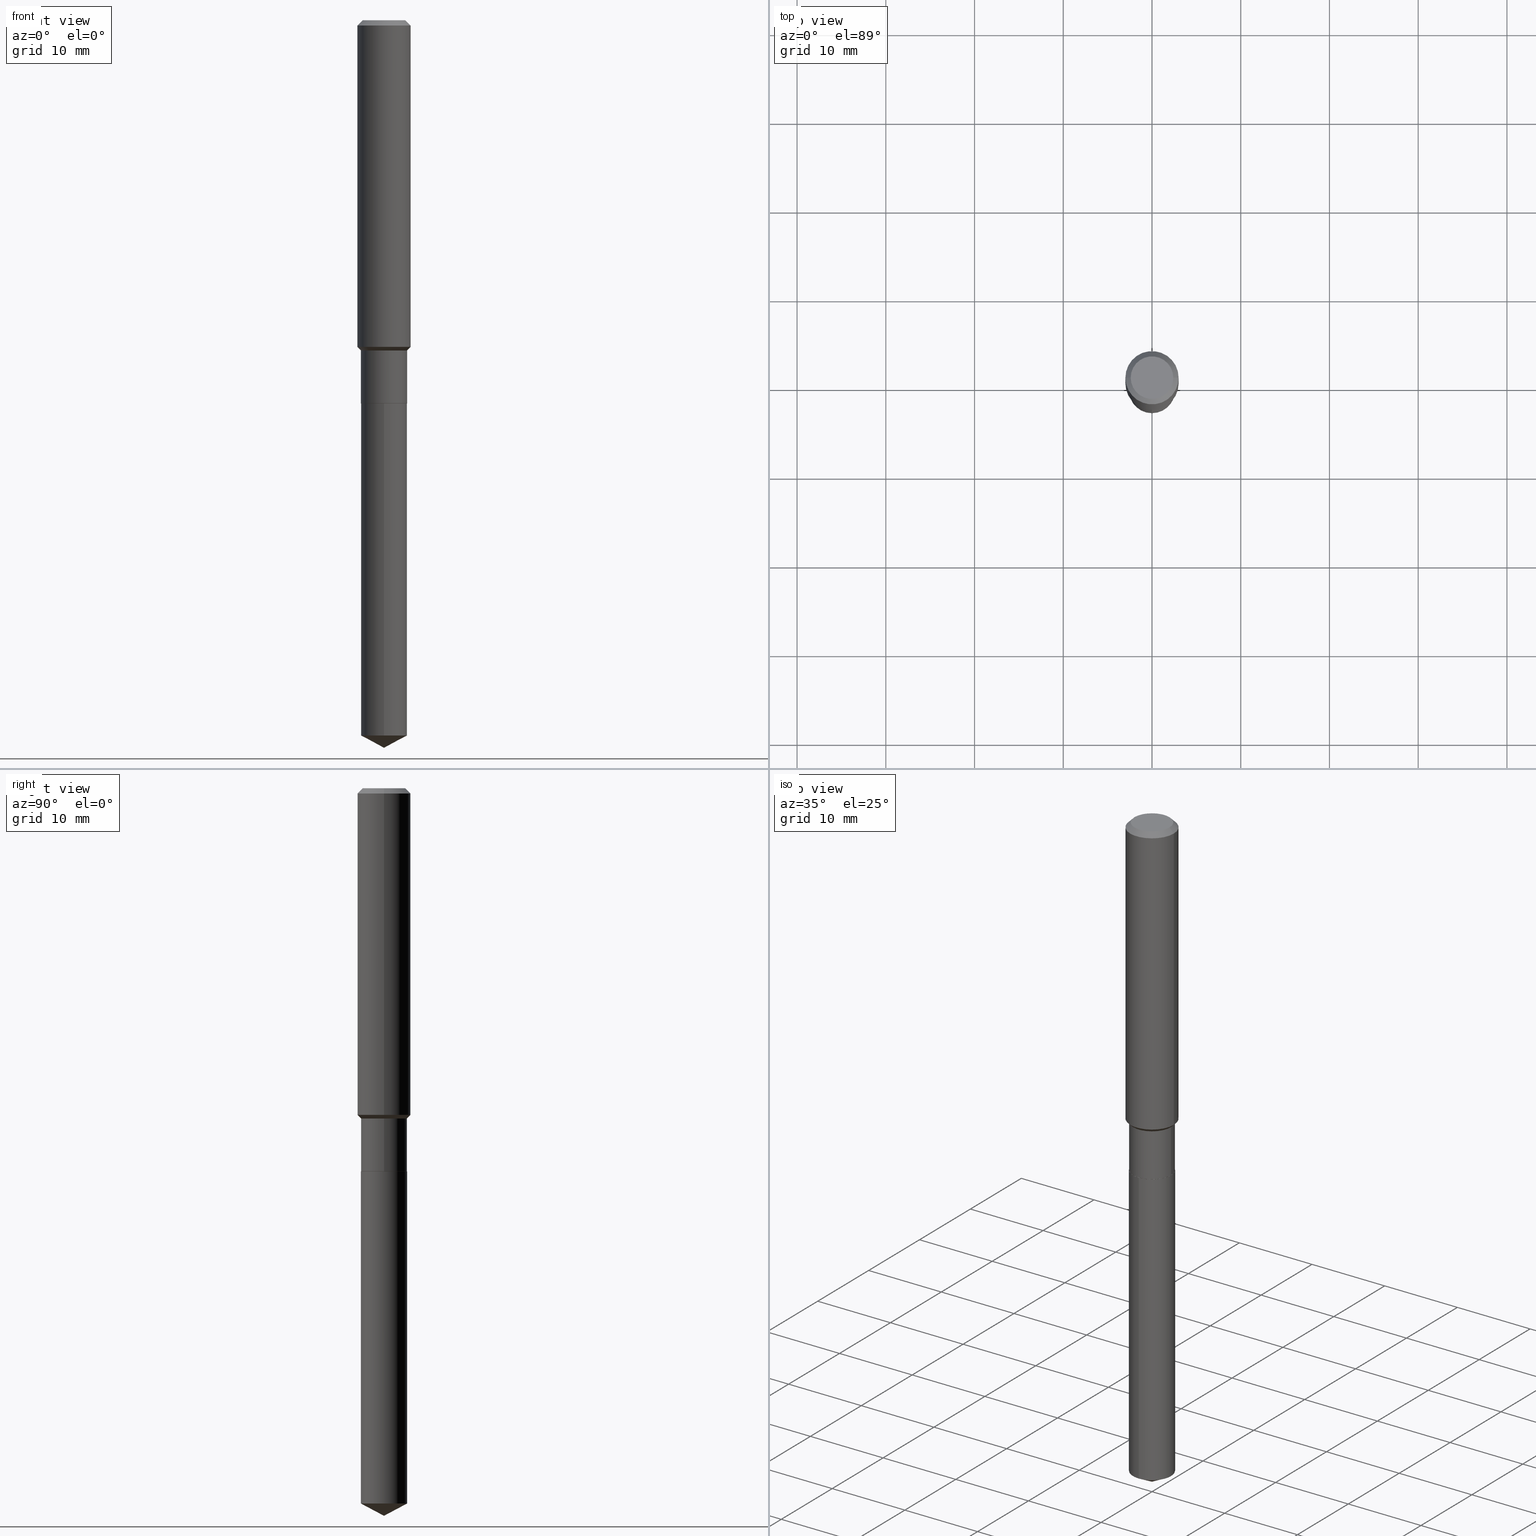
[diagram: canonical four-view strip — front | top / right | iso, engineering-drawing reading convention]
A machine part, canonical four-view strip (front | top / right | iso — engineering-drawing reading convention). The complete STEP part file that produces these views, byte-faithful:
ISO-10303-21;
HEADER;
FILE_DESCRIPTION (( 'STEP AP203' ),
    '1' );
FILE_NAME ('64822.STEP',
    '2024-04-24T19:01:54',
    ( '' ),
    ( '' ),
    'SwSTEP 2.0',
    'SolidWorks 2023',
    '' );
FILE_SCHEMA (( 'CONFIG_CONTROL_DESIGN' ));
ENDSEC;

DATA;
#1 = ADVANCED_FACE ( 'NONE', ( #134 ), #117, .T. ) ;
#2 = DATE_AND_TIME ( #202, #153 ) ;
#3 = DIRECTION ( 'NONE',  ( 1.000000000000000000, -6.982962677686265922E-15, 0.000000000000000000 ) ) ;
#4 = AXIS2_PLACEMENT_3D ( 'NONE', #91, #244, #282 ) ;
#5 = CC_DESIGN_APPROVAL ( #197, ( #76 ) ) ;
#6 = CARTESIAN_POINT ( 'NONE',  ( 4.159008798679061688E-29, -5.937962312970537319E-15, -1.700699999999999878 ) ) ;
#7 = CARTESIAN_POINT ( 'NONE',  ( 4.157786064275969447E-29, -5.936216572301116605E-15, -1.700200000000000156 ) ) ;
#8 = CARTESIAN_POINT ( 'NONE',  ( 4.159008798679061688E-29, -5.937962312970537319E-15, -1.700699999999999878 ) ) ;
#9 = CARTESIAN_POINT ( 'NONE',  ( 0.1180999999999999966, -9.071566814582237199E-16, -0.02362000000000014088 ) ) ;
#10 = EDGE_CURVE ( 'NONE', #281, #252, #254, .T. ) ;
#11 = CARTESIAN_POINT ( 'NONE',  ( 0.1023499999999999827, -7.147062300611892976E-16, 4.990766930027139796E-30 ) ) ;
#12 = VECTOR ( 'NONE', #269, 39.37007874015748143 ) ;
#13 = DIRECTION ( 'NONE',  ( -6.982962677686267499E-15, -1.000000000000000000, 3.541896320645580590E-15 ) ) ;
#14 = CIRCLE ( 'NONE', #187, 0.1018499999999999961 ) ;
#15 = CC_DESIGN_APPROVAL ( #275, ( #359 ) ) ;
#16 = PLANE ( 'NONE',  #442 ) ;
#17 = ADVANCED_FACE ( 'NONE', ( #379 ), #455, .T. ) ;
#18 = CARTESIAN_POINT ( 'NONE',  ( 5.776197320209327532E-31, -8.246878922347559293E-17, -0.02362000000000014088 ) ) ;
#19 = DATE_AND_TIME ( #321, #130 ) ;
#20 = DIRECTION ( 'NONE',  ( 1.000000000000000000, -6.982962677686263555E-15, 0.000000000000000000 ) ) ;
#21 = ADVANCED_FACE ( 'NONE', ( #210 ), #347, .T. ) ;
#22 = DATE_AND_TIME ( #280, #180 ) ;
#23 = ORIENTED_EDGE ( 'NONE', *, *, #61, .F. ) ;
#24 = AXIS2_PLACEMENT_3D ( 'NONE', #25, #388, #20 ) ;
#25 = CARTESIAN_POINT ( 'NONE',  ( 3.544829308005664880E-29, -5.061076774720080972E-15, -1.449549999999999894 ) ) ;
#26 = EDGE_LOOP ( 'NONE', ( #70, #193, #98, #435 ) ) ;
#27 = CARTESIAN_POINT ( 'NONE',  ( 4.159008798679061688E-29, -5.937962312970537319E-15, -1.700699999999999878 ) ) ;
#28 = PERSON_AND_ORGANIZATION_ROLE ( 'creator' ) ;
#29 = PERSON_AND_ORGANIZATION ( #401, #188 ) ;
#30 = CONICAL_SURFACE ( 'NONE', #303, 74.04434902938312746, 1.082104136236484271 ) ;
#31 = DIRECTION ( 'NONE',  ( -2.445468806185136597E-29, 3.491481338843145583E-15, 1.000000000000000000 ) ) ;
#32 = EDGE_LOOP ( 'NONE', ( #302, #72, #35 ) ) ;
#33 = CYLINDRICAL_SURFACE ( 'NONE', #394, 0.1023499999999999965 ) ;
#34 = EDGE_CURVE ( 'NONE', #344, #235, #471, .T. ) ;
#35 = ORIENTED_EDGE ( 'NONE', *, *, #441, .F. ) ;
#36 = CARTESIAN_POINT ( 'NONE',  ( 0.1018499999999999961, -6.649177061692883906E-15, -1.700699999999999878 ) ) ;
#37 = ORIENTED_EDGE ( 'NONE', *, *, #50, .F. ) ;
#38 = CIRCLE ( 'NONE', #410, 0.1023499999999999688 ) ;
#39 = VERTEX_POINT ( 'NONE', #246 ) ;
#40 = ORIENTED_EDGE ( 'NONE', *, *, #10, .T. ) ;
#41 = EDGE_CURVE ( 'NONE', #226, #409, #64, .T. ) ;
#42 = ORIENTED_EDGE ( 'NONE', *, *, #346, .F. ) ;
#43 = DIRECTION ( 'NONE',  ( -2.445468806185136877E-29, 3.491481338843145188E-15, 1.000000000000000000 ) ) ;
#44 = DIRECTION ( 'NONE',  ( -2.445468806185136597E-29, 3.491481338843145583E-15, 1.000000000000000000 ) ) ;
#45 = ADVANCED_FACE ( 'NONE', ( #351 ), #16, .F. ) ;
#46 = DIRECTION ( 'NONE',  ( 1.000000000000000000, -6.982962677686266711E-15, 4.876176775795936353E-29 ) ) ;
#47 = DIRECTION ( 'NONE',  ( -0.7071067811866199593, 7.493145998870616062E-15, 0.7071067811864750752 ) ) ;
#48 = DIRECTION ( 'NONE',  ( 1.000000000000000000, -6.982962677686266711E-15, 4.876176775795936353E-29 ) ) ;
#49 = DIRECTION ( 'NONE',  ( -2.445459379271598071E-29, 3.491494838719879691E-15, 1.000000000000000000 ) ) ;
#50 = EDGE_CURVE ( 'NONE', #344, #430, #53, .T. ) ;
#51 = DIRECTION ( 'NONE',  ( -6.982962677686265922E-15, -1.000000000000000000, 2.669123589315352370E-15 ) ) ;
#52 = CONICAL_SURFACE ( 'NONE', #138, 74.04434902938312746, 1.082104136236484271 ) ;
#53 = LINE ( 'NONE', #338, #85 ) ;
#54 = PERSON_AND_ORGANIZATION_ROLE ( 'creator' ) ;
#55 = APPLICATION_PROTOCOL_DEFINITION ( 'international standard', 'config_control_design', 1994, #79 ) ;
#56 = VECTOR ( 'NONE', #395, 39.37007874015748143 ) ;
#57 = DIRECTION ( 'NONE',  ( -6.982962677686267499E-15, -1.000000000000000000, 3.541896320645580590E-15 ) ) ;
#58 = APPROVAL_STATUS ( 'not_yet_approved' ) ;
#59 = EDGE_LOOP ( 'NONE', ( #205, #182, #116, #330 ) ) ;
#60 = PERSON_AND_ORGANIZATION ( #401, #188 ) ;
#61 = EDGE_CURVE ( 'NONE', #264, #301, #238, .T. ) ;
#62 = DIRECTION ( 'NONE',  ( -2.445459379271598071E-29, 3.491494838719879691E-15, 1.000000000000000000 ) ) ;
#63 = APPROVAL ( #147, 'UNSPECIFIED' ) ;
#64 = CIRCLE ( 'NONE', #212, 0.09447999999999998066 ) ;
#65 = CIRCLE ( 'NONE', #88, 0.1023499999999999688 ) ;
#66 = LINE ( 'NONE', #36, #325 ) ;
#67 = MANIFOLD_SOLID_BREP ( 'Body-Move/Copy2[2]', #126 ) ;
#68 = ORIENTED_EDGE ( 'NONE', *, *, #232, .F. ) ;
#69 = DIRECTION ( 'NONE',  ( 1.000000000000000000, -6.982962677686266711E-15, 4.876176775795936353E-29 ) ) ;
#70 = ORIENTED_EDGE ( 'NONE', *, *, #468, .T. ) ;
#71 = CARTESIAN_POINT ( 'NONE',  ( 7.272404900505040294E-16, 0.1023499999999940568, -1.700700000000000323 ) ) ;
#72 = ORIENTED_EDGE ( 'NONE', *, *, #61, .T. ) ;
#73 = AXIS2_PLACEMENT_3D ( 'NONE', #8, #124, #3 ) ;
#74 = UNCERTAINTY_MEASURE_WITH_UNIT (LENGTH_MEASURE( 1.000000000000000082E-05 ), #306, 'distance_accuracy_value', 'NONE');
#75 = AXIS2_PLACEMENT_3D ( 'NONE', #458, #49, #277 ) ;
#76 = PRODUCT_DEFINITION_FORMATION_WITH_SPECIFIED_SOURCE ( 'ANY', '', #454, .NOT_KNOWN. ) ;
#77 = ORIENTED_EDGE ( 'NONE', *, *, #353, .F. ) ;
#78 = ADVANCED_FACE ( 'NONE', ( #418 ), #381, .T. ) ;
#79 = APPLICATION_CONTEXT ( 'configuration controlled 3d designs of mechanical parts and assemblies' ) ;
#80 = VERTEX_POINT ( 'NONE', #342 ) ;
#81 = EDGE_CURVE ( 'NONE', #39, #235, #305, .T. ) ;
#82 = DESIGN_CONTEXT ( 'detailed design', #87, 'design' ) ;
#83 = DIRECTION ( 'NONE',  ( 1.000000000000000000, -6.982962677686266711E-15, 4.876176775795936353E-29 ) ) ;
#84 = CARTESIAN_POINT ( 'NONE',  ( -0.1180999999999999966, 7.422191030112725094E-16, -0.02362000000000014088 ) ) ;
#85 = VECTOR ( 'NONE', #86, 39.37007874015748143 ) ;
#86 = DIRECTION ( 'NONE',  ( -2.445468806185136877E-29, 3.491481338843145188E-15, 1.000000000000000000 ) ) ;
#87 = APPLICATION_CONTEXT ( 'configuration controlled 3d designs of mechanical parts and assemblies' ) ;
#88 = AXIS2_PLACEMENT_3D ( 'NONE', #223, #155, #110 ) ;
#89 = ORIENTED_EDGE ( 'NONE', *, *, #50, .T. ) ;
#90 = DIRECTION ( 'NONE',  ( -6.982962677686265922E-15, -1.000000000000000000, 5.338247178630704739E-15 ) ) ;
#91 = CARTESIAN_POINT ( 'NONE',  ( 4.716267017698007905E-46, -6.733579360998555036E-32, -1.928573779297252010E-17 ) ) ;
#92 = DIRECTION ( 'NONE',  ( -2.445459379271598071E-29, 3.491494838719879691E-15, 1.000000000000000000 ) ) ;
#93 = DIRECTION ( 'NONE',  ( 1.000000000000000000, -6.982962677686263555E-15, 0.000000000000000000 ) ) ;
#94 = LENGTH_MEASURE_WITH_UNIT ( LENGTH_MEASURE( 0.02539999999999999897 ), #352 );
#95 = VECTOR ( 'NONE', #348, 39.37007874015748143 ) ;
#96 = EDGE_CURVE ( 'NONE', #328, #334, #207, .T. ) ;
#97 = PERSON_AND_ORGANIZATION ( #401, #188 ) ;
#98 = ORIENTED_EDGE ( 'NONE', *, *, #129, .F. ) ;
#99 = FACE_OUTER_BOUND ( 'NONE', #393, .T. ) ;
#100 = CALENDAR_DATE ( 2024, 24, 4 ) ;
#101 = ORIENTED_EDGE ( 'NONE', *, *, #154, .F. ) ;
#102 = AXIS2_PLACEMENT_3D ( 'NONE', #423, #168, #83 ) ;
#103 = CIRCLE ( 'NONE', #214, 0.1023499999999999965 ) ;
#104 = CARTESIAN_POINT ( 'NONE',  ( 5.776197320209327532E-31, -8.246878922347559293E-17, -0.02362000000000014088 ) ) ;
#105 = PERSON_AND_ORGANIZATION_ROLE ( 'design_owner' ) ;
#106 = CC_DESIGN_PERSON_AND_ORGANIZATION_ASSIGNMENT ( #217, #28, ( #76 ) ) ;
#107 = CARTESIAN_POINT ( 'NONE',  ( 2.358133508849003952E-46, -3.366789680499277518E-32, -9.642868896486260050E-18 ) ) ;
#108 = MECHANICAL_CONTEXT ( 'NONE', #79, 'mechanical' ) ;
#109 = ORIENTED_EDGE ( 'NONE', *, *, #216, .T. ) ;
#110 = DIRECTION ( 'NONE',  ( 1.000000000000000000, -6.982962677686262766E-15, 0.000000000000000000 ) ) ;
#111 = ORIENTED_EDGE ( 'NONE', *, *, #428, .T. ) ;
#112 = DIRECTION ( 'NONE',  ( 1.000000000000000000, -6.982962677686266711E-15, 0.000000000000000000 ) ) ;
#113 = ORIENTED_EDGE ( 'NONE', *, *, #477, .F. ) ;
#114 = CARTESIAN_POINT ( 'NONE',  ( 0.000000000000000000, 0.000000000000000000, 0.000000000000000000 ) ) ;
#115 = EDGE_LOOP ( 'NONE', ( #475, #249, #483, #113 ) ) ;
#116 = ORIENTED_EDGE ( 'NONE', *, *, #10, .F. ) ;
#117 = CONICAL_SURFACE ( 'NONE', #73, 0.1018499999999999961, 0.7853981633975507526 ) ;
#118 = CONICAL_SURFACE ( 'NONE', #222, 0.1180999999999999966, 0.7853981633974460586 ) ;
#119 = ADVANCED_BREP_SHAPE_REPRESENTATION ( '64822', ( #221, #67, #357 ), #233 ) ;
#120 = ORIENTED_EDGE ( 'NONE', *, *, #398, .F. ) ;
#121 = CC_DESIGN_PERSON_AND_ORGANIZATION_ASSIGNMENT ( #400, #54, ( #359 ) ) ;
#122 = DIRECTION ( 'NONE',  ( -2.445468806185136597E-29, 3.491481338843145583E-15, 1.000000000000000000 ) ) ;
#123 = DIRECTION ( 'NONE',  ( -2.445459379271598071E-29, 3.491494838719879691E-15, 1.000000000000000000 ) ) ;
#124 = DIRECTION ( 'NONE',  ( -2.445468806185136597E-29, 3.491481338843145583E-15, 1.000000000000000000 ) ) ;
#125 =( NAMED_UNIT ( * ) SI_UNIT ( $, .STERADIAN. ) SOLID_ANGLE_UNIT ( ) );
#126 = CLOSED_SHELL ( 'NONE', ( #414, #432, #17, #297, #78, #21, #375, #343, #283, #219, #45, #1 ) ) ;
#127 = CARTESIAN_POINT ( 'NONE',  ( 4.159008798679061688E-29, -5.937962312970537319E-15, -1.700699999999999878 ) ) ;
#128 = CONICAL_SURFACE ( 'NONE', #444, 0.1018499999999999961, 0.7853981633975507526 ) ;
#129 = EDGE_CURVE ( 'NONE', #328, #408, #484, .T. ) ;
#130 = LOCAL_TIME ( 15, 1, 54.00000000000000000, #213 ) ;
#131 = PLANE ( 'NONE',  #195 ) ;
#132 = CARTESIAN_POINT ( 'NONE',  ( 7.894708859975812714E-29, -1.127154686935866524E-14, -3.228299999999999947 ) ) ;
#133 = CARTESIAN_POINT ( 'NONE',  ( 4.159008798679061688E-29, -5.937962312970537319E-15, -1.700699999999999878 ) ) ;
#134 = FACE_OUTER_BOUND ( 'NONE', #262, .T. ) ;
#135 = DIRECTION ( 'NONE',  ( 1.000000000000000000, -6.982962677686270655E-15, 0.000000000000000000 ) ) ;
#136 = DIRECTION ( 'NONE',  ( -2.445468806185136597E-29, 3.491481338843145583E-15, 1.000000000000000000 ) ) ;
#137 = SECURITY_CLASSIFICATION_LEVEL ( 'unclassified' ) ;
#138 = AXIS2_PLACEMENT_3D ( 'NONE', #142, #285, #57 ) ;
#139 = CARTESIAN_POINT ( 'NONE',  ( 3.583345441703080840E-29, -5.116067605806861096E-15, -1.465300000000000047 ) ) ;
#140 = APPROVAL_DATE_TIME ( #22, #197 ) ;
#141 = APPROVAL_ROLE ( '' ) ;
#142 = CARTESIAN_POINT ( 'NONE',  ( -8.838323577132508923E-28, 1.261888568926560873E-13, 36.14177874015747705 ) ) ;
#143 = EDGE_CURVE ( 'NONE', #264, #450, #161, .T. ) ;
#144 = AXIS2_PLACEMENT_3D ( 'NONE', #225, #366, #192 ) ;
#145 = CC_DESIGN_DATE_AND_TIME_ASSIGNMENT ( #186, #326, ( #170 ) ) ;
#146 = CYLINDRICAL_SURFACE ( 'NONE', #230, 0.1023499999999999965 ) ;
#147 = APPROVAL_STATUS ( 'not_yet_approved' ) ;
#148 = CARTESIAN_POINT ( 'NONE',  ( -0.1180999999999999966, -1.732621811039098637E-15, -0.02362000000000014088 ) ) ;
#149 = ORIENTED_EDGE ( 'NONE', *, *, #216, .F. ) ;
#150 = CARTESIAN_POINT ( 'NONE',  ( 0.1023499999999999688, -5.830773835868049900E-15, -1.465300000000000047 ) ) ;
#151 = EDGE_LOOP ( 'NONE', ( #411, #406, #198, #101 ) ) ;
#152 = VECTOR ( 'NONE', #311, 39.37007874015748143 ) ;
#153 = LOCAL_TIME ( 15, 1, 54.00000000000000000, #317 ) ;
#154 = EDGE_CURVE ( 'NONE', #334, #344, #273, .T. ) ;
#155 = DIRECTION ( 'NONE',  ( -2.445468806185136597E-29, 3.491481338843145583E-15, 1.000000000000000000 ) ) ;
#156 = ORIENTED_EDGE ( 'NONE', *, *, #194, .F. ) ;
#157 = ORIENTED_EDGE ( 'NONE', *, *, #335, .T. ) ;
#158 = ORIENTED_EDGE ( 'NONE', *, *, #438, .F. ) ;
#159 = DIRECTION ( 'NONE',  ( -6.165590087286825774E-15, -0.8829475928589252121, 0.4694715627858939699 ) ) ;
#160 = CARTESIAN_POINT ( 'NONE',  ( 4.159008798679061688E-29, -5.937962312970537319E-15, -1.700699999999999878 ) ) ;
#161 = LINE ( 'NONE', #132, #229 ) ;
#162 = CARTESIAN_POINT ( 'NONE',  ( 0.09447999999999998066, -7.704367267948738690E-16, -1.928573779296752193E-17 ) ) ;
#163 = EDGE_CURVE ( 'NONE', #409, #226, #284, .T. ) ;
#164 = CARTESIAN_POINT ( 'NONE',  ( 4.716267017698007905E-46, -6.733579360998555036E-32, -1.928573779297252010E-17 ) ) ;
#165 = LINE ( 'NONE', #419, #286 ) ;
#166 = AXIS2_PLACEMENT_3D ( 'NONE', #7, #464, #412 ) ;
#167 = AXIS2_PLACEMENT_3D ( 'NONE', #271, #276, #93 ) ;
#168 = DIRECTION ( 'NONE',  ( -2.445468806185136597E-29, 3.491481338843145583E-15, 1.000000000000000000 ) ) ;
#169 = VECTOR ( 'NONE', #239, 39.37007874015748143 ) ;
#170 = SECURITY_CLASSIFICATION ( '', '', #137 ) ;
#171 = CARTESIAN_POINT ( 'NONE',  ( -0.1181000000000000799, 8.391509709326788873E-16, -5.809262341591047988E-30 ) ) ;
#172 = DIRECTION ( 'NONE',  ( 1.000000000000000000, -6.982962677686265922E-15, 4.876176775795935793E-29 ) ) ;
#173 = FACE_OUTER_BOUND ( 'NONE', #365, .T. ) ;
#174 = COORDINATED_UNIVERSAL_TIME_OFFSET ( 5, 0, .BEHIND. ) ;
#175 = FACE_OUTER_BOUND ( 'NONE', #59, .T. ) ;
#176 = AXIS2_PLACEMENT_3D ( 'NONE', #460, #122, #46 ) ;
#177 = PERSON_AND_ORGANIZATION ( #401, #188 ) ;
#178 = CONICAL_SURFACE ( 'NONE', #201, 0.1023499999999999688, 0.7853981633974472798 ) ;
#179 = EDGE_LOOP ( 'NONE', ( #336, #367 ) ) ;
#180 = LOCAL_TIME ( 15, 1, 54.00000000000000000, #174 ) ;
#181 = FACE_OUTER_BOUND ( 'NONE', #179, .T. ) ;
#182 = ORIENTED_EDGE ( 'NONE', *, *, #368, .T. ) ;
#183 = DIRECTION ( 'NONE',  ( -6.982962677686265922E-15, -1.000000000000000000, 2.669123589315352370E-15 ) ) ;
#184 = COORDINATED_UNIVERSAL_TIME_OFFSET ( 5, 0, .BEHIND. ) ;
#185 = CARTESIAN_POINT ( 'NONE',  ( 7.272404900505402184E-16, 0.1023499999999940568, -1.700700000000000323 ) ) ;
#186 = DATE_AND_TIME ( #251, #350 ) ;
#187 = AXIS2_PLACEMENT_3D ( 'NONE', #485, #189, #227 ) ;
#188 = ORGANIZATION ( 'UNSPECIFIED', 'UNSPECIFIED', '' ) ;
#189 = DIRECTION ( 'NONE',  ( -2.445468806185136597E-29, 3.491481338843145583E-15, 1.000000000000000000 ) ) ;
#190 = CARTESIAN_POINT ( 'NONE',  ( -7.147062300611113976E-16, -0.1023500000000110433, -3.173879539669447247 ) ) ;
#191 = EDGE_LOOP ( 'NONE', ( #158, #111, #415, #77 ) ) ;
#192 = DIRECTION ( 'NONE',  ( -6.982962677686265922E-15, -1.000000000000000000, 2.669123589315352370E-15 ) ) ;
#193 = ORIENTED_EDGE ( 'NONE', *, *, #385, .T. ) ;
#194 = EDGE_CURVE ( 'NONE', #334, #39, #38, .T. ) ;
#195 = AXIS2_PLACEMENT_3D ( 'NONE', #160, #268, #345 ) ;
#196 = ORIENTED_EDGE ( 'NONE', *, *, #428, .F. ) ;
#197 = APPROVAL ( #58, 'UNSPECIFIED' ) ;
#198 = ORIENTED_EDGE ( 'NONE', *, *, #34, .F. ) ;
#199 = ORIENTED_EDGE ( 'NONE', *, *, #441, .T. ) ;
#200 = DIRECTION ( 'NONE',  ( 1.000000000000000000, -6.982962677686265922E-15, 0.000000000000000000 ) ) ;
#201 = AXIS2_PLACEMENT_3D ( 'NONE', #361, #480, #439 ) ;
#202 = CALENDAR_DATE ( 2024, 24, 4 ) ;
#203 = CARTESIAN_POINT ( 'NONE',  ( 0.000000000000000000, 0.000000000000000000, 0.000000000000000000 ) ) ;
#204 =( NAMED_UNIT ( * ) PLANE_ANGLE_UNIT ( ) SI_UNIT ( $, .RADIAN. ) );
#205 = ORIENTED_EDGE ( 'NONE', *, *, #459, .T. ) ;
#206 = FACE_OUTER_BOUND ( 'NONE', #404, .T. ) ;
#207 = LINE ( 'NONE', #11, #152 ) ;
#208 = DIRECTION ( 'NONE',  ( -1.000000000000000000, 6.982962677686266711E-15, 0.000000000000000000 ) ) ;
#209 = CIRCLE ( 'NONE', #24, 0.1181000000000001632 ) ;
#210 = FACE_OUTER_BOUND ( 'NONE', #191, .T. ) ;
#211 = DIRECTION ( 'NONE',  ( -2.445468806185136597E-29, 3.491481338843145583E-15, 1.000000000000000000 ) ) ;
#212 = AXIS2_PLACEMENT_3D ( 'NONE', #164, #44, #308 ) ;
#213 = COORDINATED_UNIVERSAL_TIME_OFFSET ( 5, 0, .BEHIND. ) ;
#214 = AXIS2_PLACEMENT_3D ( 'NONE', #339, #272, #135 ) ;
#215 = ORIENTED_EDGE ( 'NONE', *, *, #477, .T. ) ;
#216 = EDGE_CURVE ( 'NONE', #235, #344, #209, .T. ) ;
#217 = PERSON_AND_ORGANIZATION ( #401, #188 ) ;
#218 = LINE ( 'NONE', #258, #56 ) ;
#219 = ADVANCED_FACE ( 'NONE', ( #181 ), #470, .F. ) ;
#220 = FACE_OUTER_BOUND ( 'NONE', #466, .T. ) ;
#221 = MANIFOLD_SOLID_BREP ( 'Body-Move/Copy2[1]', #462 ) ;
#222 = AXIS2_PLACEMENT_3D ( 'NONE', #324, #250, #402 ) ;
#223 = CARTESIAN_POINT ( 'NONE',  ( 3.583345441703080840E-29, -5.116067605806861096E-15, -1.465300000000000047 ) ) ;
#224 = ORIENTED_EDGE ( 'NONE', *, *, #468, .F. ) ;
#225 = CARTESIAN_POINT ( 'NONE',  ( 4.159008798679061688E-29, -5.937962312970537319E-15, -1.700699999999999878 ) ) ;
#226 = VERTEX_POINT ( 'NONE', #478 ) ;
#227 = DIRECTION ( 'NONE',  ( 1.000000000000000000, -6.982962677686265922E-15, 0.000000000000000000 ) ) ;
#228 = ORIENTED_EDGE ( 'NONE', *, *, #81, .F. ) ;
#229 = VECTOR ( 'NONE', #420, 39.37007874015748143 ) ;
#230 = AXIS2_PLACEMENT_3D ( 'NONE', #27, #319, #183 ) ;
#231 = CONICAL_SURFACE ( 'NONE', #472, 0.1023499999999999688, 0.7853981633974472798 ) ;
#232 = EDGE_CURVE ( 'NONE', #409, #430, #218, .T. ) ;
#233 =( GEOMETRIC_REPRESENTATION_CONTEXT ( 3 ) GLOBAL_UNCERTAINTY_ASSIGNED_CONTEXT ( ( #74 ) ) GLOBAL_UNIT_ASSIGNED_CONTEXT ( ( #306, #204, #125 ) ) REPRESENTATION_CONTEXT ( 'NONE', 'WORKASPACE' ) );
#234 = CC_DESIGN_PERSON_AND_ORGANIZATION_ASSIGNMENT ( #177, #474, ( #170 ) ) ;
#235 = VERTEX_POINT ( 'NONE', #256 ) ;
#236 = ORIENTED_EDGE ( 'NONE', *, *, #438, .T. ) ;
#237 = ADVANCED_FACE ( 'NONE', ( #99 ), #52, .T. ) ;
#238 = LINE ( 'NONE', #376, #340 ) ;
#239 = DIRECTION ( 'NONE',  ( -0.7071067811865459074, 2.468850131082240100E-15, -0.7071067811865491270 ) ) ;
#240 = CONICAL_SURFACE ( 'NONE', #349, 0.1180999999999999966, 0.7853981633974460586 ) ;
#241 = CARTESIAN_POINT ( 'NONE',  ( 4.159008798679061688E-29, -5.937962312970537319E-15, -1.700699999999999878 ) ) ;
#242 = ORIENTED_EDGE ( 'NONE', *, *, #41, .F. ) ;
#243 = DIRECTION ( 'NONE',  ( 1.000000000000000000, -6.982962677686265922E-15, 0.000000000000000000 ) ) ;
#244 = DIRECTION ( 'NONE',  ( -2.445468806185136597E-29, 3.491481338843145583E-15, 1.000000000000000000 ) ) ;
#245 = DIRECTION ( 'NONE',  ( -2.445459379271598071E-29, 3.491494838719879691E-15, 1.000000000000000000 ) ) ;
#246 = CARTESIAN_POINT ( 'NONE',  ( -0.1023499999999999688, -4.798901599003526335E-15, -1.465300000000000047 ) ) ;
#247 = FACE_OUTER_BOUND ( 'NONE', #26, .T. ) ;
#248 = APPLICATION_PROTOCOL_DEFINITION ( 'international standard', 'config_control_design', 1994, #87 ) ;
#249 = ORIENTED_EDGE ( 'NONE', *, *, #232, .T. ) ;
#250 = DIRECTION ( 'NONE',  ( 2.445468806185136597E-29, -3.491481338843145583E-15, -1.000000000000000000 ) ) ;
#251 = CALENDAR_DATE ( 2024, 24, 4 ) ;
#252 = VERTEX_POINT ( 'NONE', #185 ) ;
#253 = DIRECTION ( 'NONE',  ( -1.000000000000000000, 6.982962677686265922E-15, -4.876176775795935793E-29 ) ) ;
#254 = CIRCLE ( 'NONE', #360, 0.1023499999999999965 ) ;
#255 = AXIS2_PLACEMENT_3D ( 'NONE', #413, #92, #90 ) ;
#256 = CARTESIAN_POINT ( 'NONE',  ( -0.1181000000000001632, -4.221925803787401987E-15, -1.449549999999999894 ) ) ;
#257 = APPROVAL_DATE_TIME ( #389, #275 ) ;
#258 = CARTESIAN_POINT ( 'NONE',  ( 0.1180999999999999966, -8.926936027602933910E-16, -0.02362000000000014088 ) ) ;
#259 = FACE_OUTER_BOUND ( 'NONE', #32, .T. ) ;
#260 = ORIENTED_EDGE ( 'NONE', *, *, #385, .F. ) ;
#261 = FACE_OUTER_BOUND ( 'NONE', #369, .T. ) ;
#262 = EDGE_LOOP ( 'NONE', ( #260, #157, #448, #196 ) ) ;
#263 = LINE ( 'NONE', #71, #377 ) ;
#264 = VERTEX_POINT ( 'NONE', #436 ) ;
#265 = ORIENTED_EDGE ( 'NONE', *, *, #346, .T. ) ;
#266 = ORIENTED_EDGE ( 'NONE', *, *, #34, .T. ) ;
#267 = CARTESIAN_POINT ( 'NONE',  ( -0.1023499999999999688, -4.388827115756398975E-15, -1.465300000000000047 ) ) ;
#268 = DIRECTION ( 'NONE',  ( 2.445459379271597510E-29, -3.491494838719879691E-15, -1.000000000000000000 ) ) ;
#269 = DIRECTION ( 'NONE',  ( 0.7071067811865467956, -2.468850131082249172E-15, 0.7071067811865482389 ) ) ;
#270 = ADVANCED_FACE ( 'NONE', ( #175 ), #146, .T. ) ;
#271 = CARTESIAN_POINT ( 'NONE',  ( 3.544829308005664880E-29, -5.061076774720080972E-15, -1.449549999999999894 ) ) ;
#272 = DIRECTION ( 'NONE',  ( -2.445468806185136597E-29, 3.491481338843145583E-15, 1.000000000000000000 ) ) ;
#273 = LINE ( 'NONE', #307, #12 ) ;
#274 = DIRECTION ( 'NONE',  ( -2.445468806185136597E-29, 3.491481338843145583E-15, 1.000000000000000000 ) ) ;
#275 = APPROVAL ( #289, 'UNSPECIFIED' ) ;
#276 = DIRECTION ( 'NONE',  ( -2.445468806185136597E-29, 3.491481338843145583E-15, 1.000000000000000000 ) ) ;
#277 = DIRECTION ( 'NONE',  ( -6.982962677686265922E-15, -1.000000000000000000, 5.338247178630704739E-15 ) ) ;
#278 = CIRCLE ( 'NONE', #144, 0.1023499999999999965 ) ;
#279 = CC_DESIGN_APPROVAL ( #63, ( #170 ) ) ;
#280 = CALENDAR_DATE ( 2024, 24, 4 ) ;
#281 = VERTEX_POINT ( 'NONE', #473 ) ;
#282 = DIRECTION ( 'NONE',  ( 1.000000000000000000, -6.982962677686267499E-15, 4.875432709231658792E-29 ) ) ;
#283 = ADVANCED_FACE ( 'NONE', ( #173 ), #118, .T. ) ;
#284 = CIRCLE ( 'NONE', #4, 0.09447999999999998066 ) ;
#285 = DIRECTION ( 'NONE',  ( -2.445459379271598071E-29, 3.491494838719879691E-15, 1.000000000000000000 ) ) ;
#286 = VECTOR ( 'NONE', #43, 39.37007874015748143 ) ;
#287 = CARTESIAN_POINT ( 'NONE',  ( 0.000000000000000000, 0.000000000000000000, 0.000000000000000000 ) ) ;
#288 = FACE_OUTER_BOUND ( 'NONE', #151, .T. ) ;
#289 = APPROVAL_STATUS ( 'not_yet_approved' ) ;
#290 = CARTESIAN_POINT ( 'NONE',  ( 0.1181000000000001632, -5.885764666954829235E-15, -1.449549999999999894 ) ) ;
#291 = ORIENTED_EDGE ( 'NONE', *, *, #449, .T. ) ;
#292 = EDGE_CURVE ( 'NONE', #430, #300, #416, .T. ) ;
#293 = FACE_OUTER_BOUND ( 'NONE', #371, .T. ) ;
#294 = ORIENTED_EDGE ( 'NONE', *, *, #154, .T. ) ;
#295 = VECTOR ( 'NONE', #457, 39.37007874015748143 ) ;
#296 = CIRCLE ( 'NONE', #255, 0.1023499999999999965 ) ;
#297 = ADVANCED_FACE ( 'NONE', ( #288 ), #231, .T. ) ;
#298 = CARTESIAN_POINT ( 'NONE',  ( 0.1018499999999999961, -6.649177061692883906E-15, -1.700699999999999878 ) ) ;
#299 = ADVANCED_FACE ( 'NONE', ( #293 ), #33, .T. ) ;
#300 = VERTEX_POINT ( 'NONE', #148 ) ;
#301 = VERTEX_POINT ( 'NONE', #190 ) ;
#302 = ORIENTED_EDGE ( 'NONE', *, *, #143, .F. ) ;
#303 = AXIS2_PLACEMENT_3D ( 'NONE', #364, #245, #13 ) ;
#304 = APPROVAL_DATE_TIME ( #2, #63 ) ;
#305 = LINE ( 'NONE', #267, #295 ) ;
#306 =( CONVERSION_BASED_UNIT ( 'INCH', #94 ) LENGTH_UNIT ( ) NAMED_UNIT ( #469 ) );
#307 = CARTESIAN_POINT ( 'NONE',  ( 0.1023499999999999688, -5.830773835868049900E-15, -1.465300000000000047 ) ) ;
#308 = DIRECTION ( 'NONE',  ( 1.000000000000000000, -6.982962677686267499E-15, 4.875432709231658792E-29 ) ) ;
#309 = LINE ( 'NONE', #456, #356 ) ;
#310 = CIRCLE ( 'NONE', #476, 0.1180999999999999966 ) ;
#311 = DIRECTION ( 'NONE',  ( -2.445468806185136877E-29, 3.491481338843145188E-15, 1.000000000000000000 ) ) ;
#312 = EDGE_CURVE ( 'NONE', #332, #328, #66, .T. ) ;
#313 = FACE_OUTER_BOUND ( 'NONE', #115, .T. ) ;
#314 = CC_DESIGN_PERSON_AND_ORGANIZATION_ASSIGNMENT ( #29, #437, ( #76 ) ) ;
#315 = DIRECTION ( 'NONE',  ( -2.445468806185136597E-29, 3.491481338843145583E-15, 1.000000000000000000 ) ) ;
#316 = DIRECTION ( 'NONE',  ( 1.000000000000000000, -6.982962677686266711E-15, 0.000000000000000000 ) ) ;
#317 = COORDINATED_UNIVERSAL_TIME_OFFSET ( 5, 0, .BEHIND. ) ;
#318 = AXIS2_PLACEMENT_3D ( 'NONE', #104, #211, #316 ) ;
#319 = DIRECTION ( 'NONE',  ( -2.445459379271598071E-29, 3.491494838719879691E-15, 1.000000000000000000 ) ) ;
#320 = PERSON_AND_ORGANIZATION ( #401, #188 ) ;
#321 = CALENDAR_DATE ( 2024, 24, 4 ) ;
#322 = ORIENTED_EDGE ( 'NONE', *, *, #353, .T. ) ;
#323 = EDGE_CURVE ( 'NONE', #300, #430, #310, .T. ) ;
#324 = CARTESIAN_POINT ( 'NONE',  ( 5.776197320209327532E-31, -8.246878922347559293E-17, -0.02362000000000014088 ) ) ;
#325 = VECTOR ( 'NONE', #329, 39.37007874015748143 ) ;
#326 = DATE_TIME_ROLE ( 'classification_date' ) ;
#327 = CARTESIAN_POINT ( 'NONE',  ( 4.159008798679061688E-29, -5.937962312970537319E-15, -1.700699999999999878 ) ) ;
#328 = VERTEX_POINT ( 'NONE', #405 ) ;
#329 = DIRECTION ( 'NONE',  ( 0.7071067811866199593, -2.468850131083015945E-15, 0.7071067811864750752 ) ) ;
#330 = ORIENTED_EDGE ( 'NONE', *, *, #449, .F. ) ;
#331 = DIRECTION ( 'NONE',  ( -2.445459379271598071E-29, 3.491494838719879691E-15, 1.000000000000000000 ) ) ;
#332 = VERTEX_POINT ( 'NONE', #298 ) ;
#333 = VECTOR ( 'NONE', #47, 39.37007874015748143 ) ;
#334 = VERTEX_POINT ( 'NONE', #150 ) ;
#335 = EDGE_CURVE ( 'NONE', #80, #332, #14, .T. ) ;
#336 = ORIENTED_EDGE ( 'NONE', *, *, #41, .T. ) ;
#337 = SHAPE_DEFINITION_REPRESENTATION ( #372, #119 ) ;
#338 = CARTESIAN_POINT ( 'NONE',  ( 0.1181000000000000799, -8.246878922347486570E-16, 5.758764772215004644E-30 ) ) ;
#339 = CARTESIAN_POINT ( 'NONE',  ( 4.157786064275969447E-29, -5.936216572301116605E-15, -1.700200000000000156 ) ) ;
#340 = VECTOR ( 'NONE', #159, 39.37007874015748143 ) ;
#341 = LOCAL_TIME ( 15, 1, 54.00000000000000000, #396 ) ;
#342 = CARTESIAN_POINT ( 'NONE',  ( -0.1018499999999999961, -5.211625309424764107E-15, -1.700699999999999878 ) ) ;
#343 = ADVANCED_FACE ( 'NONE', ( #261 ), #482, .T. ) ;
#344 = VERTEX_POINT ( 'NONE', #290 ) ;
#345 = DIRECTION ( 'NONE',  ( 6.982962677686265922E-15, 1.000000000000000000, -3.491494838719879691E-15 ) ) ;
#346 = EDGE_CURVE ( 'NONE', #252, #281, #278, .T. ) ;
#347 = CYLINDRICAL_SURFACE ( 'NONE', #176, 0.1023499999999999827 ) ;
#348 = DIRECTION ( 'NONE',  ( -2.445468806185136877E-29, 3.491481338843145188E-15, 1.000000000000000000 ) ) ;
#349 = AXIS2_PLACEMENT_3D ( 'NONE', #18, #465, #208 ) ;
#350 = LOCAL_TIME ( 15, 1, 54.00000000000000000, #184 ) ;
#351 = FACE_OUTER_BOUND ( 'NONE', #446, .T. ) ;
#352 =( LENGTH_UNIT ( ) NAMED_UNIT ( * ) SI_UNIT ( $, .METRE. ) );
#353 = EDGE_CURVE ( 'NONE', #39, #334, #65, .T. ) ;
#354 = DATE_TIME_ROLE ( 'creation_date' ) ;
#355 = EDGE_LOOP ( 'NONE', ( #440, #236, #156, #488 ) ) ;
#356 = VECTOR ( 'NONE', #123, 39.37007874015748143 ) ;
#357 = AXIS2_PLACEMENT_3D ( 'NONE', #287, #392, #426 ) ;
#358 = APPROVAL_ROLE ( '' ) ;
#359 = PRODUCT_DEFINITION ( 'UNKNOWN', '', #76, #82 ) ;
#360 = AXIS2_PLACEMENT_3D ( 'NONE', #241, #383, #51 ) ;
#361 = CARTESIAN_POINT ( 'NONE',  ( 3.583345441703080840E-29, -5.116067605806861096E-15, -1.465300000000000047 ) ) ;
#362 = CIRCLE ( 'NONE', #75, 0.1023499999999999965 ) ;
#363 = ORIENTED_EDGE ( 'NONE', *, *, #323, .T. ) ;
#364 = CARTESIAN_POINT ( 'NONE',  ( -8.838323577132508923E-28, 1.261888568926560873E-13, 36.14177874015747705 ) ) ;
#365 = EDGE_LOOP ( 'NONE', ( #68, #242, #215, #363 ) ) ;
#366 = DIRECTION ( 'NONE',  ( -2.445459379271598071E-29, 3.491494838719879691E-15, 1.000000000000000000 ) ) ;
#367 = ORIENTED_EDGE ( 'NONE', *, *, #163, .T. ) ;
#368 = EDGE_CURVE ( 'NONE', #450, #252, #263, .T. ) ;
#369 = EDGE_LOOP ( 'NONE', ( #120, #109, #89, #489 ) ) ;
#370 = AXIS2_PLACEMENT_3D ( 'NONE', #133, #274, #200 ) ;
#371 = EDGE_LOOP ( 'NONE', ( #481, #199, #291, #42 ) ) ;
#372 = PRODUCT_DEFINITION_SHAPE ( 'NONE', 'NONE',  #359 ) ;
#373 = ORIENTED_EDGE ( 'NONE', *, *, #292, .F. ) ;
#374 = PRODUCT_RELATED_PRODUCT_CATEGORY ( 'detail', '', ( #454 ) ) ;
#375 = ADVANCED_FACE ( 'NONE', ( #220 ), #178, .T. ) ;
#376 = CARTESIAN_POINT ( 'NONE',  ( 7.894676514102499811E-29, -1.127159278783938975E-14, -3.228299999999999947 ) ) ;
#377 = VECTOR ( 'NONE', #62, 39.37007874015748143 ) ;
#378 = ADVANCED_FACE ( 'NONE', ( #259 ), #30, .T. ) ;
#379 = FACE_OUTER_BOUND ( 'NONE', #427, .T. ) ;
#380 = LINE ( 'NONE', #171, #95 ) ;
#381 = CYLINDRICAL_SURFACE ( 'NONE', #433, 0.1023499999999999827 ) ;
#382 = CARTESIAN_POINT ( 'NONE',  ( 7.272404900505398240E-16, 0.1023499999999888804, -3.173879539669448135 ) ) ;
#383 = DIRECTION ( 'NONE',  ( -2.445459379271598071E-29, 3.491494838719879691E-15, 1.000000000000000000 ) ) ;
#384 = LINE ( 'NONE', #424, #333 ) ;
#385 = EDGE_CURVE ( 'NONE', #80, #408, #384, .T. ) ;
#386 = DIRECTION ( 'NONE',  ( -2.438088387897960049E-29, 3.491481338843145188E-15, 1.000000000000000000 ) ) ;
#387 = APPROVAL_ROLE ( '' ) ;
#388 = DIRECTION ( 'NONE',  ( -2.445468806185136597E-29, 3.491481338843145583E-15, 1.000000000000000000 ) ) ;
#389 = DATE_AND_TIME ( #100, #341 ) ;
#390 = ORIENTED_EDGE ( 'NONE', *, *, #335, .F. ) ;
#391 = DIRECTION ( 'NONE',  ( -2.445468806185136597E-29, 3.491481338843145583E-15, 1.000000000000000000 ) ) ;
#392 = DIRECTION ( 'NONE',  ( 0.000000000000000000, 0.000000000000000000, 1.000000000000000000 ) ) ;
#393 = EDGE_LOOP ( 'NONE', ( #23, #452, #490 ) ) ;
#394 = AXIS2_PLACEMENT_3D ( 'NONE', #327, #331, #443 ) ;
#395 = DIRECTION ( 'NONE',  ( 0.7071067811865459074, -7.319954787623249734E-15, -0.7071067811865491270 ) ) ;
#396 = COORDINATED_UNIVERSAL_TIME_OFFSET ( 5, 0, .BEHIND. ) ;
#397 = ORIENTED_EDGE ( 'NONE', *, *, #398, .T. ) ;
#398 = EDGE_CURVE ( 'NONE', #235, #300, #380, .T. ) ;
#399 = DIRECTION ( 'NONE',  ( 2.438088387897960049E-29, -3.491481338843145188E-15, -1.000000000000000000 ) ) ;
#400 = PERSON_AND_ORGANIZATION ( #401, #188 ) ;
#401 = PERSON ( 'UNSPECIFIED', 'UNSPECIFIED', 'UNSPECIFIED', ('UNSPECIFIED'), ('UNSPECIFIED'), ('UNSPECIFIED') ) ;
#402 = DIRECTION ( 'NONE',  ( -1.000000000000000000, 6.982962677686266711E-15, 0.000000000000000000 ) ) ;
#403 = CARTESIAN_POINT ( 'NONE',  ( 5.776197320209327532E-31, -8.246878922347559293E-17, -0.02362000000000014088 ) ) ;
#404 = EDGE_LOOP ( 'NONE', ( #40, #265 ) ) ;
#405 = CARTESIAN_POINT ( 'NONE',  ( 0.1023499999999999965, -6.650922802362306198E-15, -1.700200000000000156 ) ) ;
#406 = ORIENTED_EDGE ( 'NONE', *, *, #81, .T. ) ;
#407 = DIRECTION ( 'NONE',  ( 1.000000000000000000, -6.982962677686262766E-15, 0.000000000000000000 ) ) ;
#408 = VERTEX_POINT ( 'NONE', #467 ) ;
#409 = VERTEX_POINT ( 'NONE', #162 ) ;
#410 = AXIS2_PLACEMENT_3D ( 'NONE', #429, #136, #431 ) ;
#411 = ORIENTED_EDGE ( 'NONE', *, *, #194, .T. ) ;
#412 = DIRECTION ( 'NONE',  ( 1.000000000000000000, -6.982962677686270655E-15, 0.000000000000000000 ) ) ;
#413 = CARTESIAN_POINT ( 'NONE',  ( 7.761609521314728506E-29, -1.108156107223414240E-14, -3.173879539669447691 ) ) ;
#414 = ADVANCED_FACE ( 'NONE', ( #247 ), #128, .T. ) ;
#415 = ORIENTED_EDGE ( 'NONE', *, *, #96, .T. ) ;
#416 = CIRCLE ( 'NONE', #318, 0.1180999999999999966 ) ;
#417 = CC_DESIGN_SECURITY_CLASSIFICATION ( #170, ( #76 ) ) ;
#418 = FACE_OUTER_BOUND ( 'NONE', #355, .T. ) ;
#419 = CARTESIAN_POINT ( 'NONE',  ( -0.1023499999999999827, 7.272404900504624170E-16, -5.034530064875895945E-30 ) ) ;
#420 = DIRECTION ( 'NONE',  ( 6.273719981627756610E-15, 0.8829475928589286537, 0.4694715627858877527 ) ) ;
#421 = ADVANCED_FACE ( 'NONE', ( #206 ), #131, .F. ) ;
#422 = LINE ( 'NONE', #84, #169 ) ;
#423 = CARTESIAN_POINT ( 'NONE',  ( 0.000000000000000000, 0.000000000000000000, 0.000000000000000000 ) ) ;
#424 = CARTESIAN_POINT ( 'NONE',  ( -0.1018499999999999961, -5.214274536598875308E-15, -1.700699999999999878 ) ) ;
#425 = CC_DESIGN_DATE_AND_TIME_ASSIGNMENT ( #19, #354, ( #359 ) ) ;
#426 = DIRECTION ( 'NONE',  ( 1.000000000000000000, 0.000000000000000000, 0.000000000000000000 ) ) ;
#427 = EDGE_LOOP ( 'NONE', ( #266, #397, #373, #37 ) ) ;
#428 = EDGE_CURVE ( 'NONE', #408, #328, #103, .T. ) ;
#429 = CARTESIAN_POINT ( 'NONE',  ( 3.583345441703080840E-29, -5.116067605806861096E-15, -1.465300000000000047 ) ) ;
#430 = VERTEX_POINT ( 'NONE', #9 ) ;
#431 = DIRECTION ( 'NONE',  ( 1.000000000000000000, -6.982962677686262766E-15, 0.000000000000000000 ) ) ;
#432 = ADVANCED_FACE ( 'NONE', ( #313 ), #240, .T. ) ;
#433 = AXIS2_PLACEMENT_3D ( 'NONE', #203, #315, #48 ) ;
#434 = APPROVAL_PERSON_ORGANIZATION ( #320, #197, #141 ) ;
#435 = ORIENTED_EDGE ( 'NONE', *, *, #312, .F. ) ;
#436 = CARTESIAN_POINT ( 'NONE',  ( 7.894676514102499811E-29, -1.127159278783938975E-14, -3.228299999999999947 ) ) ;
#437 = PERSON_AND_ORGANIZATION_ROLE ( 'design_supplier' ) ;
#438 = EDGE_CURVE ( 'NONE', #408, #39, #165, .T. ) ;
#439 = DIRECTION ( 'NONE',  ( 1.000000000000000000, -6.982962677686262766E-15, 0.000000000000000000 ) ) ;
#440 = ORIENTED_EDGE ( 'NONE', *, *, #129, .T. ) ;
#441 = EDGE_CURVE ( 'NONE', #450, #301, #296, .T. ) ;
#442 = AXIS2_PLACEMENT_3D ( 'NONE', #127, #386, #172 ) ;
#443 = DIRECTION ( 'NONE',  ( -6.982962677686265922E-15, -1.000000000000000000, 2.669123589315352370E-15 ) ) ;
#444 = AXIS2_PLACEMENT_3D ( 'NONE', #6, #461, #243 ) ;
#445 = APPROVAL_PERSON_ORGANIZATION ( #479, #63, #387 ) ;
#446 = EDGE_LOOP ( 'NONE', ( #224, #390 ) ) ;
#447 = DIRECTION ( 'NONE',  ( -2.445468806185136597E-29, 3.491481338843145583E-15, 1.000000000000000000 ) ) ;
#448 = ORIENTED_EDGE ( 'NONE', *, *, #312, .T. ) ;
#449 = EDGE_CURVE ( 'NONE', #301, #281, #309, .T. ) ;
#450 = VERTEX_POINT ( 'NONE', #382 ) ;
#451 = CC_DESIGN_PERSON_AND_ORGANIZATION_ASSIGNMENT ( #60, #105, ( #454 ) ) ;
#452 = ORIENTED_EDGE ( 'NONE', *, *, #143, .T. ) ;
#453 = AXIS2_PLACEMENT_3D ( 'NONE', #114, #447, #69 ) ;
#454 = PRODUCT ( '64822', '64822', '', ( #108 ) ) ;
#455 = CYLINDRICAL_SURFACE ( 'NONE', #102, 0.1181000000000000799 ) ;
#456 = CARTESIAN_POINT ( 'NONE',  ( -7.147062300611476852E-16, -0.1023500000000059501, -1.700699999999999656 ) ) ;
#457 = DIRECTION ( 'NONE',  ( -0.7071067811865467956, 7.493145998870351005E-15, 0.7071067811865482389 ) ) ;
#458 = CARTESIAN_POINT ( 'NONE',  ( 7.761609521314728506E-29, -1.108156107223414240E-14, -3.173879539669447691 ) ) ;
#459 = EDGE_CURVE ( 'NONE', #301, #450, #362, .T. ) ;
#460 = CARTESIAN_POINT ( 'NONE',  ( 0.000000000000000000, 0.000000000000000000, 0.000000000000000000 ) ) ;
#461 = DIRECTION ( 'NONE',  ( -2.445468806185136597E-29, 3.491481338843145583E-15, 1.000000000000000000 ) ) ;
#462 = CLOSED_SHELL ( 'NONE', ( #270, #237, #378, #299, #421 ) ) ;
#463 = AXIS2_PLACEMENT_3D ( 'NONE', #107, #399, #253 ) ;
#464 = DIRECTION ( 'NONE',  ( -2.445468806185136597E-29, 3.491481338843145583E-15, 1.000000000000000000 ) ) ;
#465 = DIRECTION ( 'NONE',  ( 2.445468806185136597E-29, -3.491481338843145583E-15, -1.000000000000000000 ) ) ;
#466 = EDGE_LOOP ( 'NONE', ( #228, #322, #294, #149 ) ) ;
#467 = CARTESIAN_POINT ( 'NONE',  ( -0.1023499999999999965, -4.798901599003526335E-15, -1.700200000000000156 ) ) ;
#468 = EDGE_CURVE ( 'NONE', #332, #80, #486, .T. ) ;
#469 = DIMENSIONAL_EXPONENTS ( 1.000000000000000000, 0.000000000000000000, 0.000000000000000000, 0.000000000000000000, 0.000000000000000000, 0.000000000000000000, 0.000000000000000000 ) ;
#470 = PLANE ( 'NONE',  #463 ) ;
#471 = CIRCLE ( 'NONE', #167, 0.1181000000000001632 ) ;
#472 = AXIS2_PLACEMENT_3D ( 'NONE', #139, #391, #407 ) ;
#473 = CARTESIAN_POINT ( 'NONE',  ( -7.147062300611476852E-16, -0.1023500000000059501, -1.700699999999999656 ) ) ;
#474 = PERSON_AND_ORGANIZATION_ROLE ( 'classification_officer' ) ;
#475 = ORIENTED_EDGE ( 'NONE', *, *, #163, .F. ) ;
#476 = AXIS2_PLACEMENT_3D ( 'NONE', #403, #31, #112 ) ;
#477 = EDGE_CURVE ( 'NONE', #226, #300, #422, .T. ) ;
#478 = CARTESIAN_POINT ( 'NONE',  ( -0.09447999999999998066, 7.009847083995354710E-16, -1.928573779297727792E-17 ) ) ;
#479 = PERSON_AND_ORGANIZATION ( #401, #188 ) ;
#480 = DIRECTION ( 'NONE',  ( -2.445468806185136597E-29, 3.491481338843145583E-15, 1.000000000000000000 ) ) ;
#481 = ORIENTED_EDGE ( 'NONE', *, *, #368, .F. ) ;
#482 = CYLINDRICAL_SURFACE ( 'NONE', #453, 0.1181000000000000799 ) ;
#483 = ORIENTED_EDGE ( 'NONE', *, *, #292, .T. ) ;
#484 = CIRCLE ( 'NONE', #166, 0.1023499999999999965 ) ;
#485 = CARTESIAN_POINT ( 'NONE',  ( 4.159008798679061688E-29, -5.937962312970537319E-15, -1.700699999999999878 ) ) ;
#486 = CIRCLE ( 'NONE', #370, 0.1018499999999999961 ) ;
#487 = APPROVAL_PERSON_ORGANIZATION ( #97, #275, #358 ) ;
#488 = ORIENTED_EDGE ( 'NONE', *, *, #96, .F. ) ;
#489 = ORIENTED_EDGE ( 'NONE', *, *, #323, .F. ) ;
#490 = ORIENTED_EDGE ( 'NONE', *, *, #459, .F. ) ;
ENDSEC;
END-ISO-10303-21;
